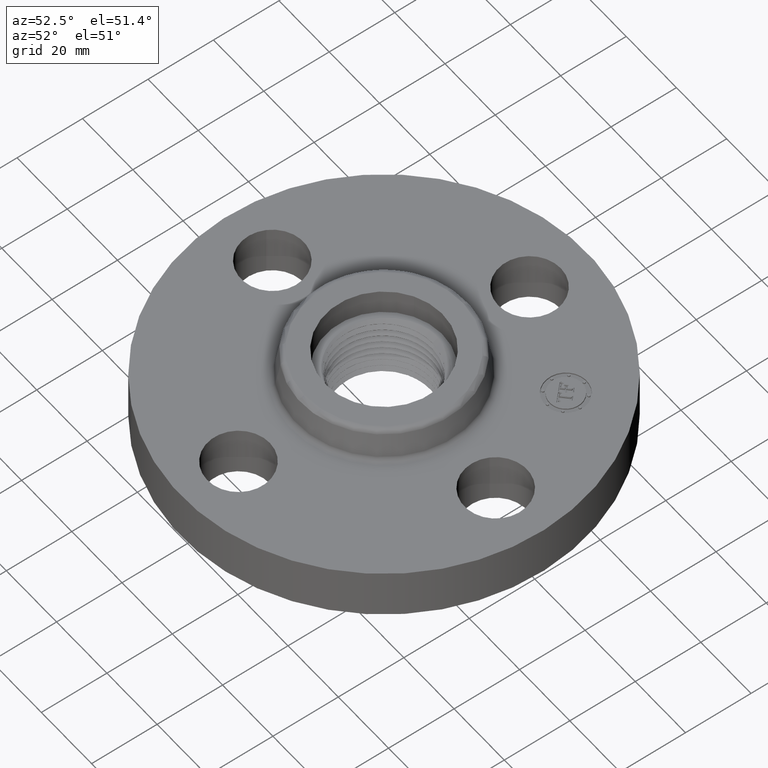
[diagram: clean part render]
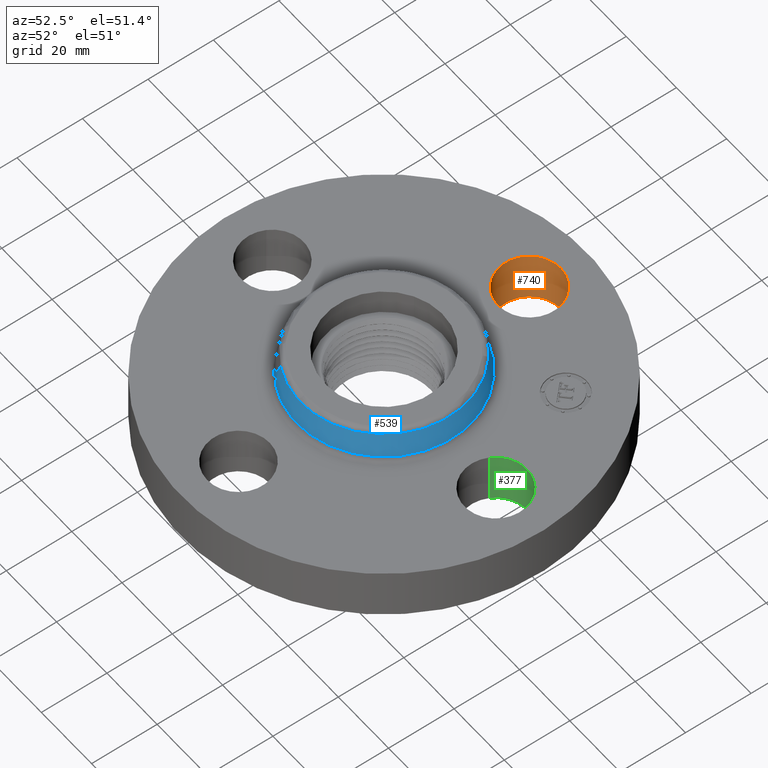
[diagram: same view with three faces highlighted in distinct colors, each labeled with its STEP entity id]
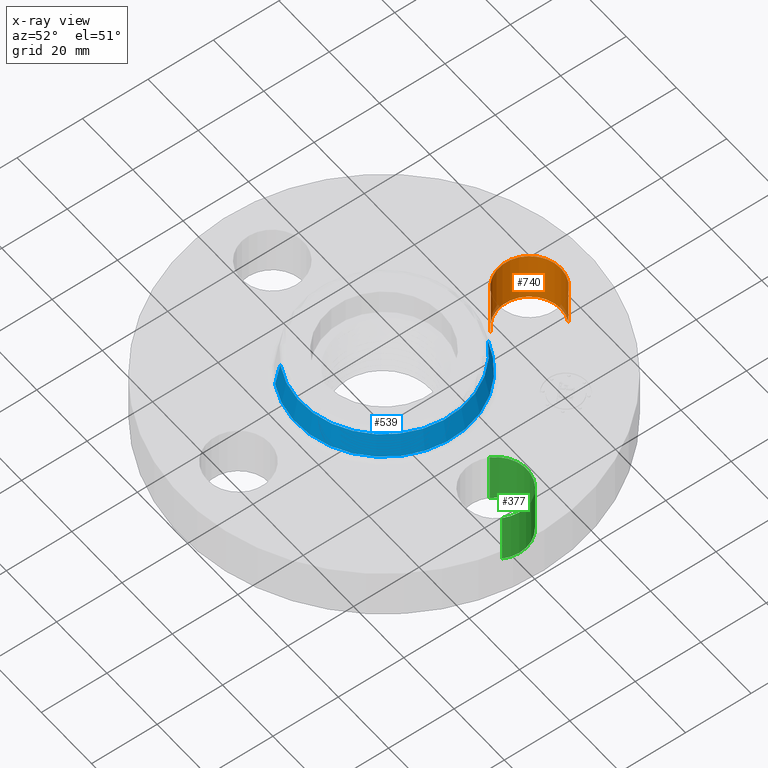
[diagram: x-ray of the same camera — body ghosted, the three highlighted faces saturated]
A machine part, auxiliary view with three faces highlighted in distinct colors.
The next image is the same camera in x-ray (body ghosted, the three faces saturated) — at least one of them is partly hidden behind the body in this view.
Their STEP definitions:

[orange] entity #740 — the highlighted cylindrical surface (partial cylindrical patch) has radius 9.525 mm, axis along (0, 0, -1).
#693=AXIS2_PLACEMENT_3D('Circle Axis2P3D',#691,#692,$) ;
#713=AXIS2_PLACEMENT_3D('Cylinder Axis2P3D',#710,#711,#712) ;
#731=AXIS2_PLACEMENT_3D('Circle Axis2P3D',#729,#730,$) ;
#691=CARTESIAN_POINT('Axis2P3D Location',(-4.19611851827E-016,1.75000000001,0.)) ;
#695=CARTESIAN_POINT('Vertex',(-0.179784576977,1.4209065393,0.)) ;
#697=CARTESIAN_POINT('Vertex',(0.179784576977,2.07909346072,0.)) ;
#710=CARTESIAN_POINT('Axis2P3D Location',(-3.21469784777E-016,1.75000000001,0.616062992128)) ;
#715=CARTESIAN_POINT('Line Origine',(-0.179784576977,1.4209065393,0.310000000001)) ;
#719=CARTESIAN_POINT('Vertex',(-0.179784576977,1.4209065393,0.620000000002)) ;
#722=CARTESIAN_POINT('Line Origine',(0.179784576977,2.07909346072,0.310000000001)) ;
#726=CARTESIAN_POINT('Vertex',(0.179784576977,2.07909346072,0.620000000002)) ;
#729=CARTESIAN_POINT('Axis2P3D Location',(-3.21469784777E-016,1.75000000001,0.620000000002)) ;
#692=DIRECTION('Axis2P3D Direction',(0.,0.,-0.0393700787402)) ;
#711=DIRECTION('Axis2P3D Direction',(0.,0.,-0.0393700787402)) ;
#712=DIRECTION('Axis2P3D XDirection',(0.0188750212049,0.0345504945626,0.)) ;
#716=DIRECTION('Vector Direction',(0.,0.,-0.0393700787402)) ;
#723=DIRECTION('Vector Direction',(0.,0.,-0.0393700787402)) ;
#730=DIRECTION('Axis2P3D Direction',(0.,0.,-0.0393700787402)) ;
#717=VECTOR('Line Direction',#716,0.0393700787402) ;
#724=VECTOR('Line Direction',#723,0.0393700787402) ;
#735=ORIENTED_EDGE('',*,*,#721,.F.) ;
#736=ORIENTED_EDGE('',*,*,#699,.T.) ;
#737=ORIENTED_EDGE('',*,*,#728,.T.) ;
#738=ORIENTED_EDGE('',*,*,#733,.F.) ;
#740=ADVANCED_FACE('PartBody',(#739),#714,.F.) ;
#694=CIRCLE('generated circle',#693,0.375000000001) ;
#732=CIRCLE('generated circle',#731,0.375000000001) ;
#714=CYLINDRICAL_SURFACE('generated cylinder',#713,0.375000000001) ;
#699=EDGE_CURVE('',#696,#698,#694,.T.) ;
#721=EDGE_CURVE('',#696,#720,#718,.F.) ;
#728=EDGE_CURVE('',#698,#727,#725,.F.) ;
#733=EDGE_CURVE('',#720,#727,#732,.T.) ;
#734=EDGE_LOOP('',(#735,#736,#737,#738)) ;
#739=FACE_OUTER_BOUND('',#734,.T.) ;
#718=LINE('Line',#715,#717) ;
#725=LINE('Line',#722,#724) ;
#696=VERTEX_POINT('',#695) ;
#698=VERTEX_POINT('',#697) ;
#720=VERTEX_POINT('',#719) ;
#727=VERTEX_POINT('',#726) ;

[blue] entity #539 — the highlighted conical surface has half-angle 10 deg.
#475=AXIS2_PLACEMENT_3D('Circle Axis2P3D',#473,#474,$) ;
#512=AXIS2_PLACEMENT_3D('Cone Axis2P3D',#509,#510,#511) ;
#523=AXIS2_PLACEMENT_3D('Circle Axis2P3D',#521,#522,$) ;
#470=CARTESIAN_POINT('Vertex',(0.503999699235,0.922565261197,0.669581109343)) ;
#473=CARTESIAN_POINT('Axis2P3D Location',(0.,0.,0.669581109343)) ;
#477=CARTESIAN_POINT('Vertex',(-0.503999699235,-0.922565261197,0.669581109343)) ;
#509=CARTESIAN_POINT('Axis2P3D Location',(0.,0.,0.950418890664)) ;
#514=CARTESIAN_POINT('Line Origine',(0.49212929596,0.90083663375,0.810000000003)) ;
#518=CARTESIAN_POINT('Vertex',(0.480258892685,0.879108006303,0.950418890664)) ;
#521=CARTESIAN_POINT('Axis2P3D Location',(0.,0.,0.950418890664)) ;
#525=CARTESIAN_POINT('Vertex',(-0.480258892685,-0.879108006303,0.950418890664)) ;
#528=CARTESIAN_POINT('Line Origine',(-0.49212929596,-0.90083663375,0.810000000003)) ;
#474=DIRECTION('Axis2P3D Direction',(0.,0.,-0.0393700787402)) ;
#510=DIRECTION('Axis2P3D Direction',(0.,0.,-0.0393700787402)) ;
#511=DIRECTION('Axis2P3D XDirection',(-0.0188750212049,-0.0345504945626,0.)) ;
#515=DIRECTION('Vector Direction',(0.00327761303565,0.00599963041829,-0.03877195878)) ;
#522=DIRECTION('Axis2P3D Direction',(0.,0.,-0.0393700787402)) ;
#529=DIRECTION('Vector Direction',(-0.00327761303565,-0.00599963041829,-0.03877195878)) ;
#516=VECTOR('Line Direction',#515,0.0393700787402) ;
#530=VECTOR('Line Direction',#529,0.0393700787402) ;
#534=ORIENTED_EDGE('',*,*,#479,.F.) ;
#535=ORIENTED_EDGE('',*,*,#520,.T.) ;
#536=ORIENTED_EDGE('',*,*,#527,.T.) ;
#537=ORIENTED_EDGE('',*,*,#532,.F.) ;
#539=ADVANCED_FACE('PartBody',(#538),#513,.T.) ;
#476=CIRCLE('generated circle',#475,1.05125751269) ;
#524=CIRCLE('generated circle',#523,1.00173823464) ;
#513=CONICAL_SURFACE('Cone',#512,1.00173823464,0.174532925199) ;
#479=EDGE_CURVE('',#471,#478,#476,.T.) ;
#520=EDGE_CURVE('',#471,#519,#517,.F.) ;
#527=EDGE_CURVE('',#519,#526,#524,.T.) ;
#532=EDGE_CURVE('',#478,#526,#531,.F.) ;
#533=EDGE_LOOP('',(#534,#535,#536,#537)) ;
#538=FACE_OUTER_BOUND('',#533,.T.) ;
#517=LINE('Line',#514,#516) ;
#531=LINE('Line',#528,#530) ;
#471=VERTEX_POINT('',#470) ;
#478=VERTEX_POINT('',#477) ;
#519=VERTEX_POINT('',#518) ;
#526=VERTEX_POINT('',#525) ;

[green] entity #377 — the highlighted cylindrical surface (partial cylindrical patch) has radius 9.525 mm, axis along (0, -0, -1).
#341=AXIS2_PLACEMENT_3D('Cylinder Axis2P3D',#338,#339,#340) ;
#354=AXIS2_PLACEMENT_3D('Circle Axis2P3D',#352,#353,$) ;
#368=AXIS2_PLACEMENT_3D('Circle Axis2P3D',#366,#367,$) ;
#338=CARTESIAN_POINT('Axis2P3D Location',(1.75000000001,0.,0.616062992128)) ;
#343=CARTESIAN_POINT('Line Origine',(1.4209065393,0.179784576977,0.310000000001)) ;
#347=CARTESIAN_POINT('Vertex',(1.4209065393,0.179784576977,0.)) ;
#349=CARTESIAN_POINT('Vertex',(1.4209065393,0.179784576977,0.620000000002)) ;
#352=CARTESIAN_POINT('Axis2P3D Location',(1.75000000001,0.,0.)) ;
#356=CARTESIAN_POINT('Vertex',(2.07909346072,-0.179784576977,0.)) ;
#359=CARTESIAN_POINT('Line Origine',(2.07909346072,-0.179784576977,0.310000000001)) ;
#363=CARTESIAN_POINT('Vertex',(2.07909346072,-0.179784576977,0.620000000002)) ;
#366=CARTESIAN_POINT('Axis2P3D Location',(1.75000000001,0.,0.620000000002)) ;
#339=DIRECTION('Axis2P3D Direction',(0.,-0.,-0.0393700787402)) ;
#340=DIRECTION('Axis2P3D XDirection',(0.0345504945626,-0.0188750212049,0.)) ;
#344=DIRECTION('Vector Direction',(0.,0.,-0.0393700787402)) ;
#353=DIRECTION('Axis2P3D Direction',(0.,-0.,-0.0393700787402)) ;
#360=DIRECTION('Vector Direction',(0.,0.,-0.0393700787402)) ;
#367=DIRECTION('Axis2P3D Direction',(0.,-0.,-0.0393700787402)) ;
#345=VECTOR('Line Direction',#344,0.0393700787402) ;
#361=VECTOR('Line Direction',#360,0.0393700787402) ;
#372=ORIENTED_EDGE('',*,*,#351,.F.) ;
#373=ORIENTED_EDGE('',*,*,#358,.T.) ;
#374=ORIENTED_EDGE('',*,*,#365,.T.) ;
#375=ORIENTED_EDGE('',*,*,#370,.F.) ;
#377=ADVANCED_FACE('PartBody',(#376),#342,.F.) ;
#355=CIRCLE('generated circle',#354,0.375000000001) ;
#369=CIRCLE('generated circle',#368,0.375000000001) ;
#342=CYLINDRICAL_SURFACE('generated cylinder',#341,0.375000000001) ;
#351=EDGE_CURVE('',#348,#350,#346,.F.) ;
#358=EDGE_CURVE('',#348,#357,#355,.T.) ;
#365=EDGE_CURVE('',#357,#364,#362,.F.) ;
#370=EDGE_CURVE('',#350,#364,#369,.T.) ;
#371=EDGE_LOOP('',(#372,#373,#374,#375)) ;
#376=FACE_OUTER_BOUND('',#371,.T.) ;
#346=LINE('Line',#343,#345) ;
#362=LINE('Line',#359,#361) ;
#348=VERTEX_POINT('',#347) ;
#350=VERTEX_POINT('',#349) ;
#357=VERTEX_POINT('',#356) ;
#364=VERTEX_POINT('',#363) ;